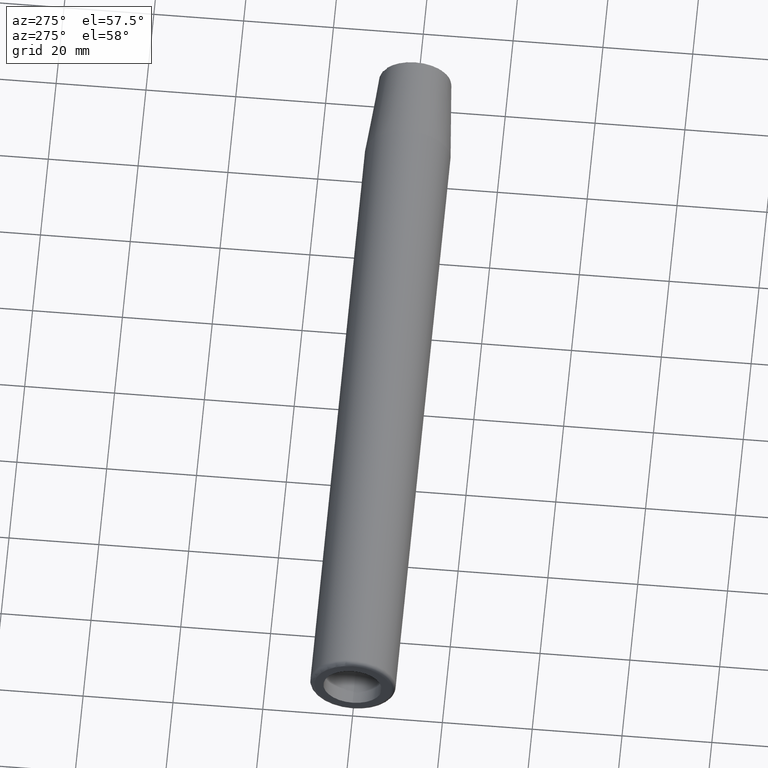
[diagram: clean part render]
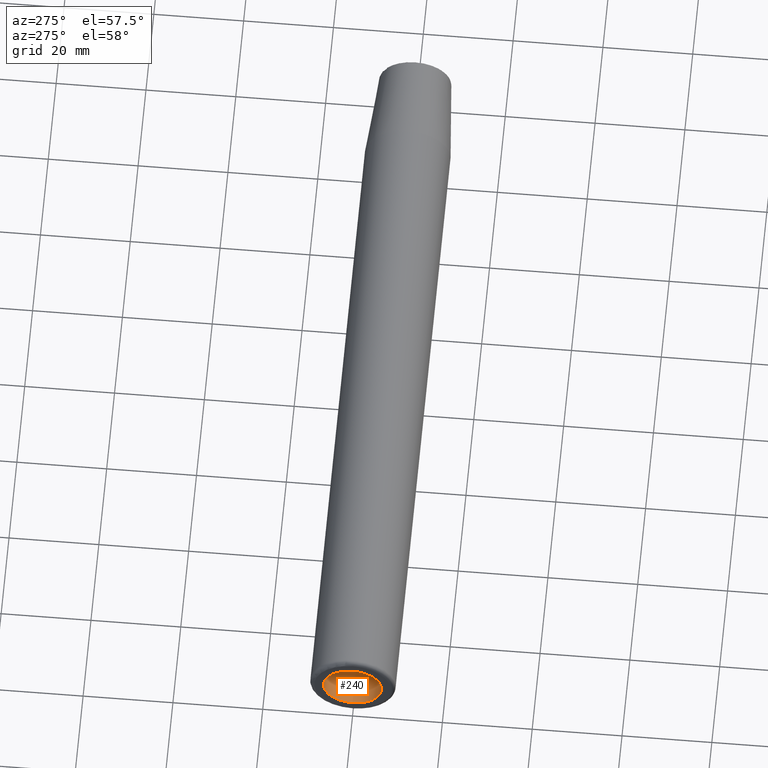
[diagram: same view with one face highlighted and labeled with its STEP entity id]
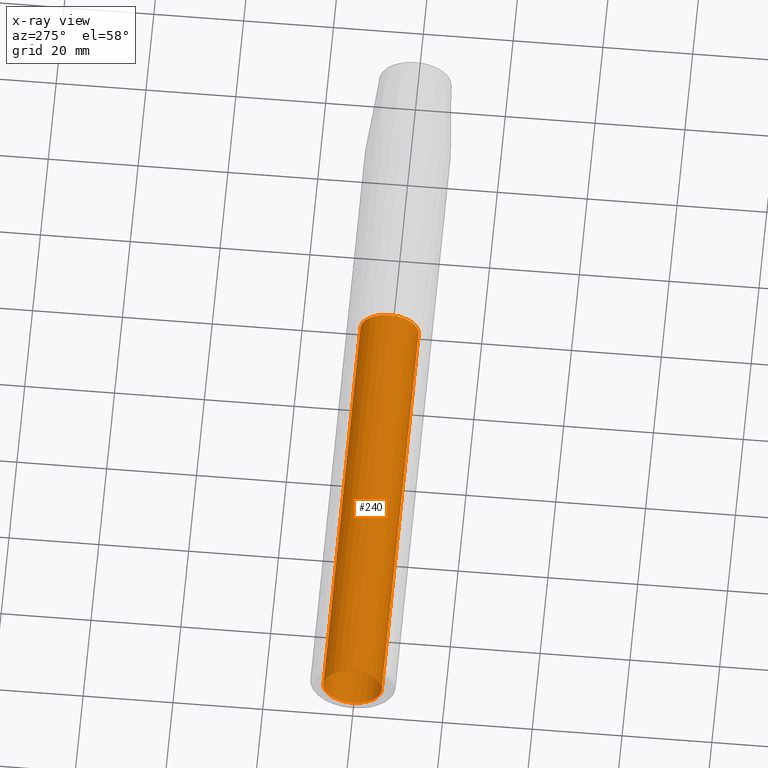
[diagram: x-ray of the same camera — body ghosted, the highlighted face saturated]
A machine part, auxiliary view. The second image highlights one B-rep face of the part: STEP entity #240.
The next image is the same camera in x-ray: the body ghosted, the highlighted face saturated — about 0% of this face is hidden behind the body in this view.
In plain terms, the highlighted cylindrical surface (bore or boss wall) has radius 6.5 mm, axis along (-1, -0, 0).
Its self-contained STEP definition (entity closure, byte-faithful):
#28=CYLINDRICAL_SURFACE('',#287,6.5);
#35=FACE_OUTER_BOUND('',#51,.T.);
#51=EDGE_LOOP('',(#182,#183,#184,#185));
#71=LINE('',#438,#79);
#79=VECTOR('',#349,6.5);
#91=CIRCLE('',#286,6.5);
#92=CIRCLE('',#288,6.5);
#117=VERTEX_POINT('',#432);
#118=VERTEX_POINT('',#436);
#141=EDGE_CURVE('',#117,#117,#91,.T.);
#143=EDGE_CURVE('',#118,#118,#92,.T.);
#144=EDGE_CURVE('',#118,#117,#71,.T.);
#182=ORIENTED_EDGE('',*,*,#143,.F.);
#183=ORIENTED_EDGE('',*,*,#144,.T.);
#184=ORIENTED_EDGE('',*,*,#141,.F.);
#185=ORIENTED_EDGE('',*,*,#144,.F.);
#240=ADVANCED_FACE('',(#35),#28,.F.);
#286=AXIS2_PLACEMENT_3D('',#433,#342,#343);
#287=AXIS2_PLACEMENT_3D('',#435,#345,#346);
#288=AXIS2_PLACEMENT_3D('',#437,#347,#348);
#342=DIRECTION('center_axis',(-1.,-1.22464679914735E-16,0.));
#343=DIRECTION('ref_axis',(0.,0.,1.));
#345=DIRECTION('center_axis',(-1.,-1.22464679914735E-16,0.));
#346=DIRECTION('ref_axis',(0.,0.,1.));
#347=DIRECTION('center_axis',(1.,1.22464679914735E-16,0.));
#348=DIRECTION('ref_axis',(0.,0.,1.));
#349=DIRECTION('',(1.,1.22464679914735E-16,0.));
#432=CARTESIAN_POINT('',(-66.,-8.87868929381831E-15,-6.5));
#433=CARTESIAN_POINT('Origin',(-66.,-8.08266887437253E-15,0.));
#435=CARTESIAN_POINT('Origin',(-113.,-1.38385088303651E-14,0.));
#436=CARTESIAN_POINT('',(-160.,-2.03903692058034E-14,-6.5));
#437=CARTESIAN_POINT('Origin',(-160.,-1.95943487863577E-14,0.));
#438=CARTESIAN_POINT('',(-113.,-1.46345292498109E-14,-6.5));